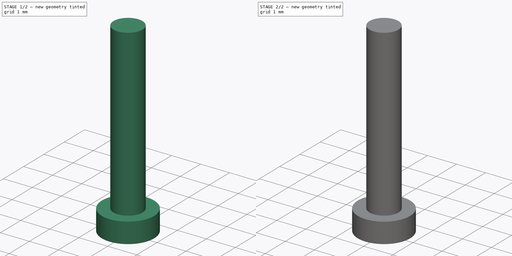
[diagram: build sequence overview — one tinted view per stage of 2, left to right]
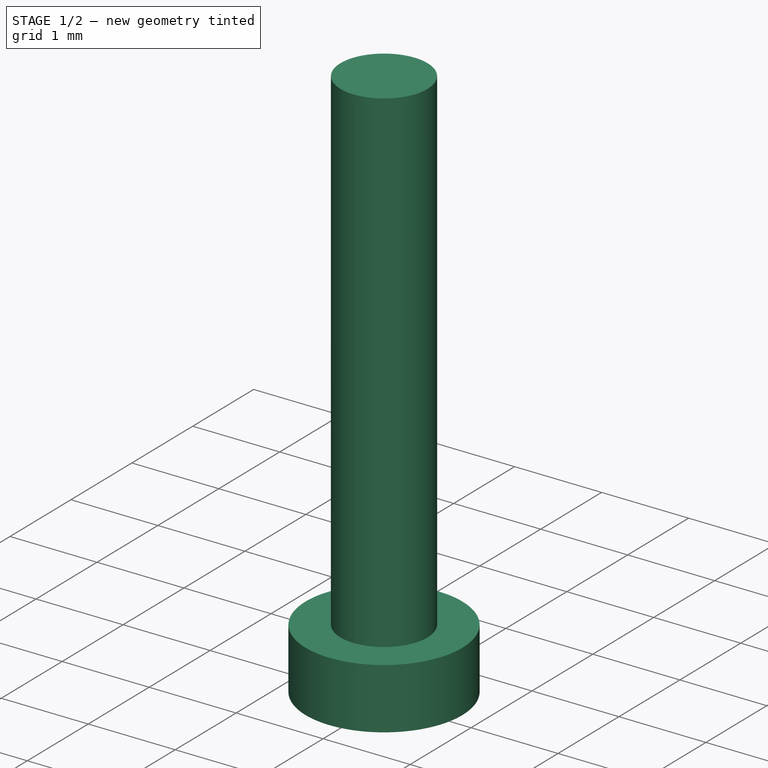
[diagram: stage 1 of 2 — iso view after this stage's code; geometry added in this stage tinted green]
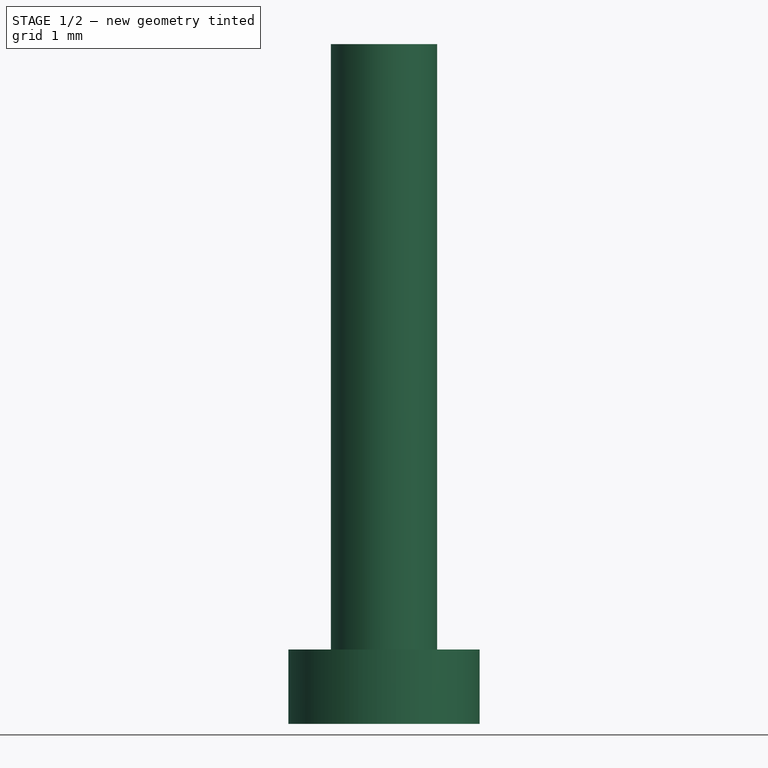
[diagram: stage 1 of 2 — front view after this stage's code; geometry added in this stage tinted green]
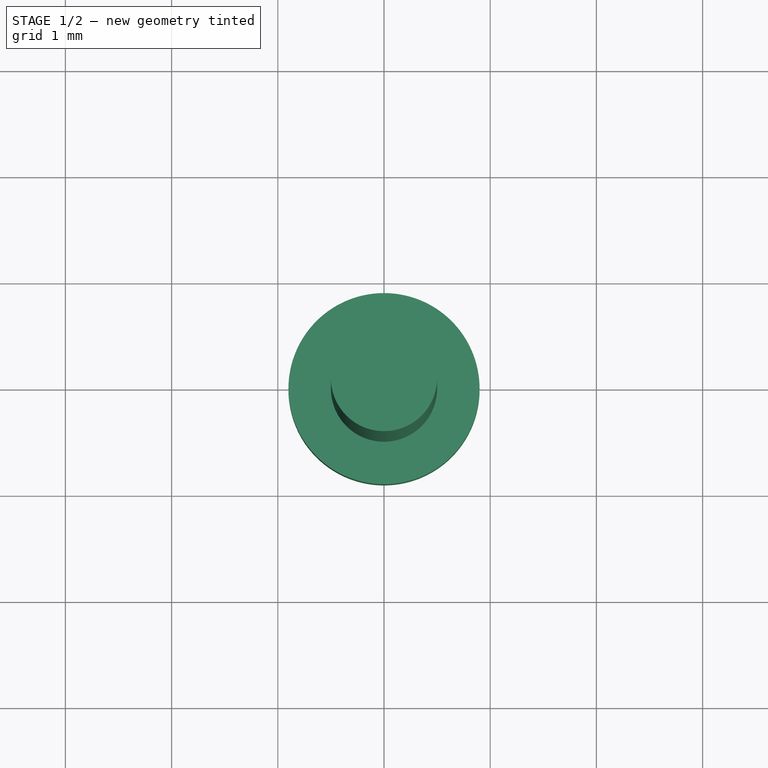
[diagram: stage 1 of 2 — top view after this stage's code; geometry added in this stage tinted green]
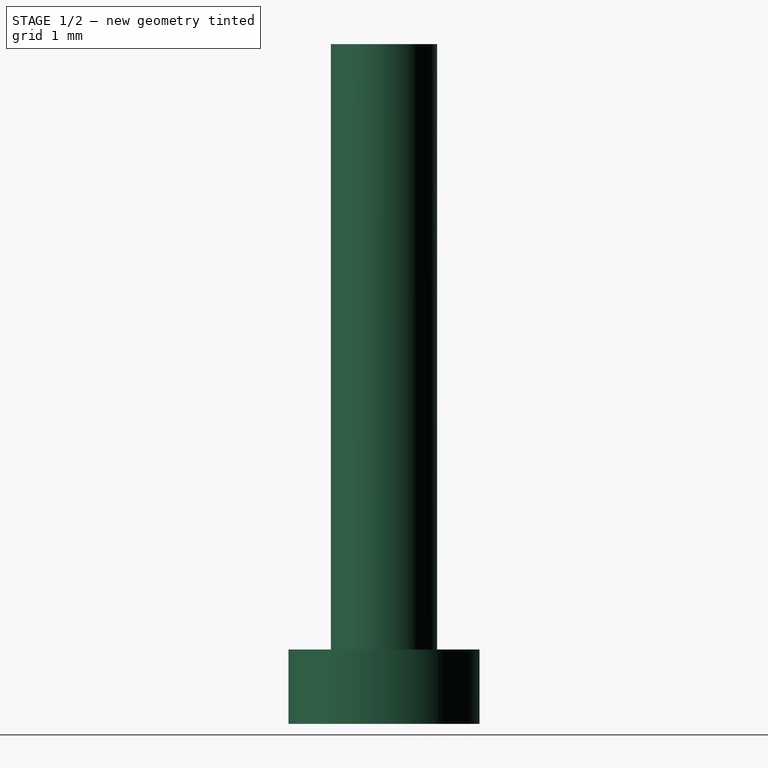
[diagram: stage 1 of 2 — right view after this stage's code; geometry added in this stage tinted green]
FCSTD DOCUMENT  (FreeCAD 0.21R33675 (Git))
Label: screw
License: All rights reserved
LicenseURL: https://en.wikipedia.org/wiki/All_rights_reserved
objects: Sketcher::SketchObject×3, PartDesign::Pad×2, PartDesign::Pocket×1, PartDesign::Body×1
note: 10 computed .brp shape members not serialized (recipe doc carries the construction recipe); baked Part::Feature solids carry a one-line shape summary decoded from their .brp

FEATURE [Sketcher::SketchObject] Sketch008
  FullyConstrained = true
  MapMode = 5
  Support = -> [XY_Plane003]
  sketch-geometry (1):
    g0: Circle CenterX=0 CenterY=0 CenterZ=0 NormalX=0 NormalY=0 NormalZ=1 AngleXU=0 Radius=0.9
  constraints (2):
    c: Coincident(g0,g-1)
    c: Diameter(g0) = 1.8
FEATURE [PartDesign::Pad] Pad007
  Direction = (0,0,1)
  Length = 0.7
  Length2 = 10
  Profile = -> Sketch008
  ReferenceAxis = -> Sketch008 [N_Axis]
  Type = 0
FEATURE [Sketcher::SketchObject] Sketch009
  FullyConstrained = true
  MapMode = 5
  Placement = pos=(0,0,0.7) rot=(0,0,1;0rad)
  Support = -> [Pad007]
  sketch-geometry (1):
    g0: Circle CenterX=0 CenterY=0 CenterZ=0 NormalX=0 NormalY=0 NormalZ=1 AngleXU=0 Radius=0.5
  constraints (2):
    c: Coincident(g0,g-1)
    c: Diameter(g0) = 1
FEATURE [PartDesign::Pad] Pad008
  BaseFeature = -> Pad007
  Direction = (0,0,1)
  Length = 5.7
  Length2 = 10
  Profile = -> Sketch009
  ReferenceAxis = -> Sketch009 [N_Axis]
  Type = 0
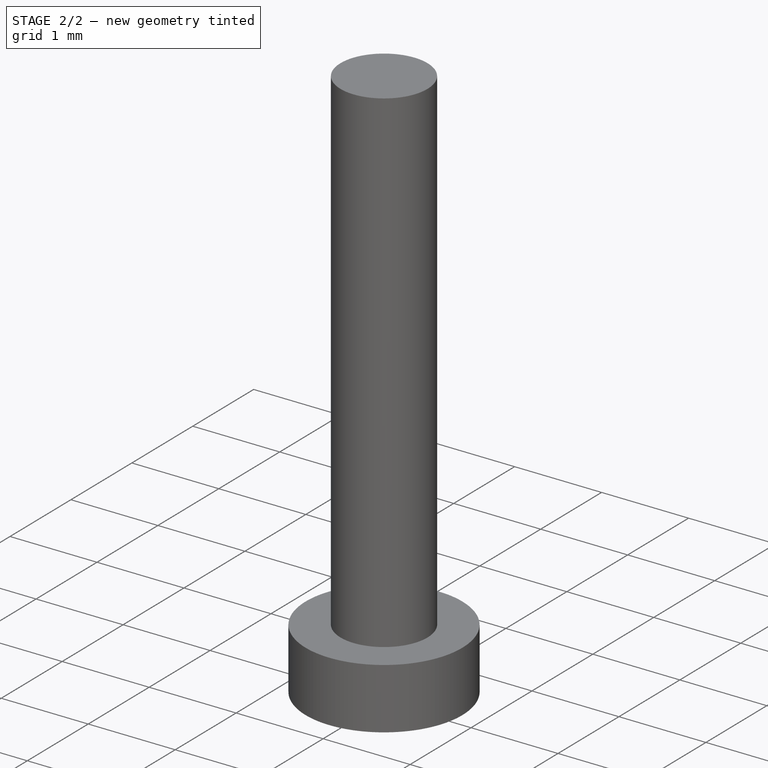
[diagram: stage 2 of 2 — iso view after this stage's code; geometry added in this stage tinted green]
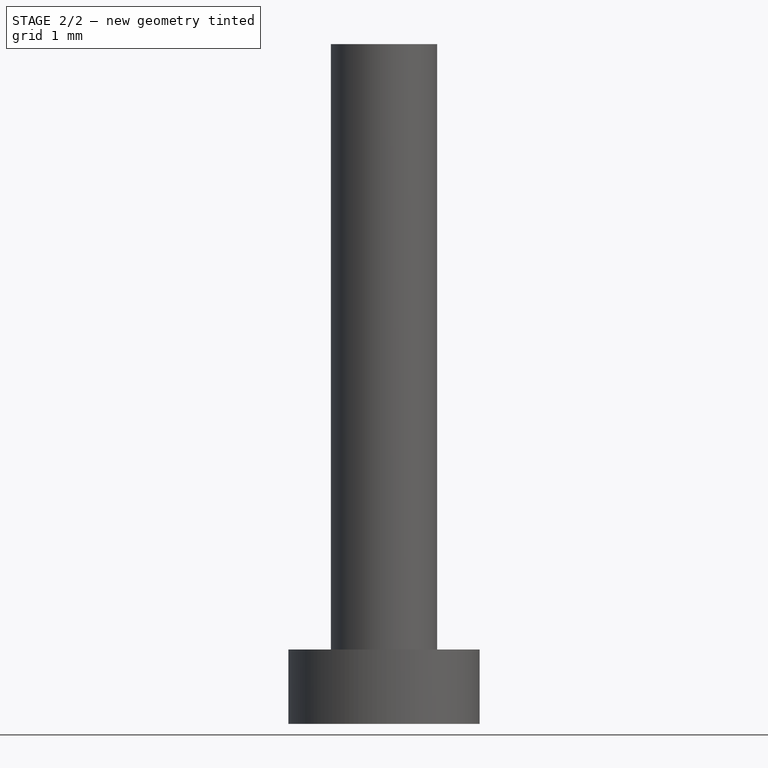
[diagram: stage 2 of 2 — front view after this stage's code; geometry added in this stage tinted green]
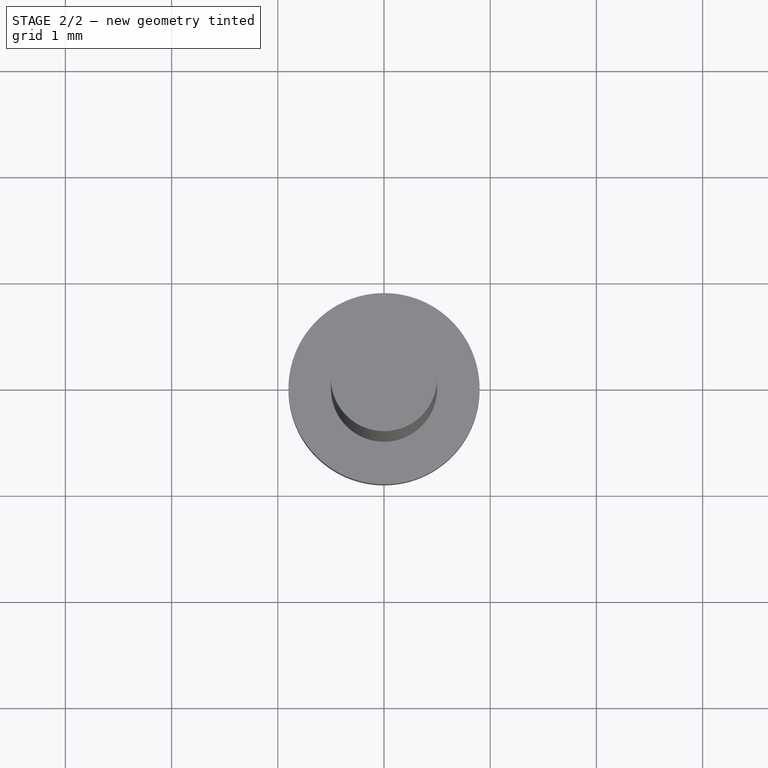
[diagram: stage 2 of 2 — top view after this stage's code; geometry added in this stage tinted green]
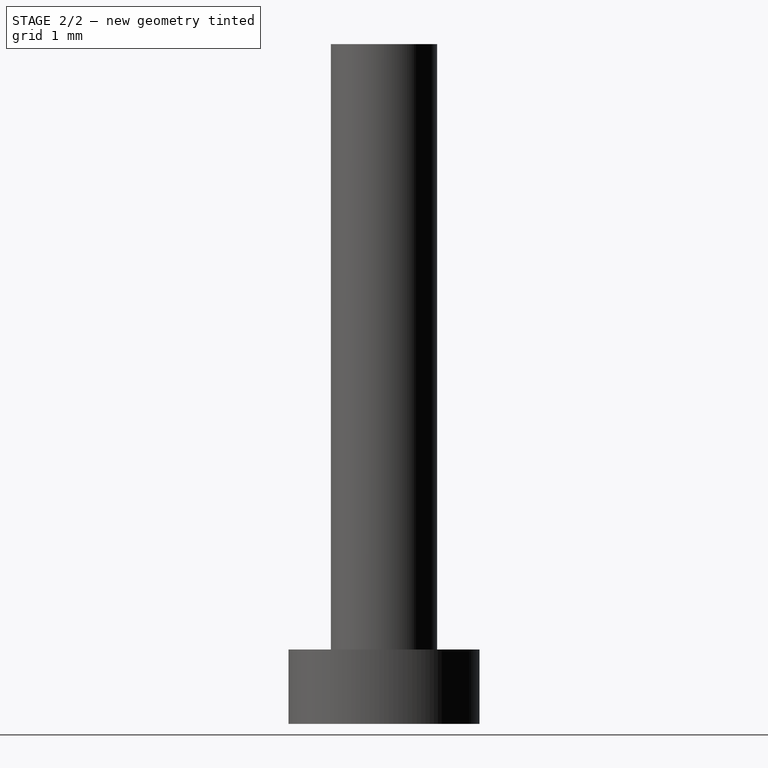
[diagram: stage 2 of 2 — right view after this stage's code; geometry added in this stage tinted green]
FEATURE [Sketcher::SketchObject] Sketch010
  FullyConstrained = true
  MapMode = 5
  Placement = pos=(0,0,0) rot=(1,0,0;3.14159rad)
  Support = -> [Pad008]
  sketch-geometry (12):
    g0: LineSegment StartX=-0.15 StartY=0.15 StartZ=0 EndX=-0.15 EndY=0.65 EndZ=0
    g1: LineSegment StartX=-0.15 StartY=0.65 StartZ=0 EndX=0.15 EndY=0.65 EndZ=0
    g2: LineSegment StartX=0.15 StartY=0.65 StartZ=0 EndX=0.15 EndY=0.15 EndZ=0
    g3: LineSegment StartX=0.15 StartY=0.15 StartZ=0 EndX=0.65 EndY=0.15 EndZ=0
    g4: LineSegment StartX=0.65 StartY=0.15 StartZ=0 EndX=0.65 EndY=-0.15 EndZ=0
    g5: LineSegment StartX=0.65 StartY=-0.15 StartZ=0 EndX=0.15 EndY=-0.15 EndZ=0
    g6: LineSegment StartX=0.15 StartY=-0.15 StartZ=0 EndX=0.15 EndY=-0.65 EndZ=0
    g7: LineSegment StartX=-0.15 StartY=-0.65 StartZ=0 EndX=-0.15 EndY=-0.15 EndZ=0
    g8: LineSegment StartX=-0.15 StartY=-0.15 StartZ=0 EndX=-0.65 EndY=-0.15 EndZ=0
    g9: LineSegment StartX=-0.65 StartY=-0.15 StartZ=0 EndX=-0.65 EndY=0.15 EndZ=0
    g10: LineSegment StartX=-0.65 StartY=0.15 StartZ=0 EndX=-0.15 EndY=0.15 EndZ=0
    g11: LineSegment StartX=-0.15 StartY=-0.65 StartZ=0 EndX=0.15 EndY=-0.65 EndZ=0
  constraints (35):
    c: Vertical(g0)
    c: Coincident(g0,g1)
    c: Horizontal(g1)
    c: Coincident(g1,g2)
    c: Vertical(g2)
    c: Coincident(g2,g3)
    c: Horizontal(g3)
    c: Coincident(g3,g4)
    c: Vertical(g4)
    c: Coincident(g4,g5)
    c: Horizontal(g5)
    c: Coincident(g5,g6)
    c: Vertical(g6)
    c: Coincident(g7,g8)
    c: Horizontal(g8)
    c: Coincident(g8,g9)
    c: Vertical(g9)
    c: Coincident(g9,g10)
    c: Coincident(g10,g0)
    c: Horizontal(g10)
    c: Coincident(g11,g7)
    c: Coincident(g11,g6)
    c: Horizontal(g11)
    c: Vertical(g7)
    c: Equal(g0,g2)
    c: Equal(g2,g3)
    c: Equal(g3,g5)
    c: Equal(g5,g6)
    c: Equal(g6,g7)
    c: Equal(g7,g8)
    c: Equal(g8,g10)
    c: Equal(g1,g9)
    c: Symmetric(g0,g6,g-1)
    c: Distance(g4) = 0.3
    c: Distance(g3) = 0.5
FEATURE [PartDesign::Pocket] Pocket001
  BaseFeature = -> Pad008
  Direction = (0,0,1)
  Length = 0.3
  Length2 = 5
  Profile = -> Sketch010
  ReferenceAxis = -> Sketch010 [N_Axis]
  Type = 0
FEATURE [PartDesign::Body] Body003  label="screw001"
  Group = -> [Sketch008,Pad007,Sketch009,Pad008,Sketch010,Pocket001]
  Origin = -> Origin003
  Placement = pos=(16.8,0,0) rot=(0,0,1;0rad)
  Tip = -> Pocket001
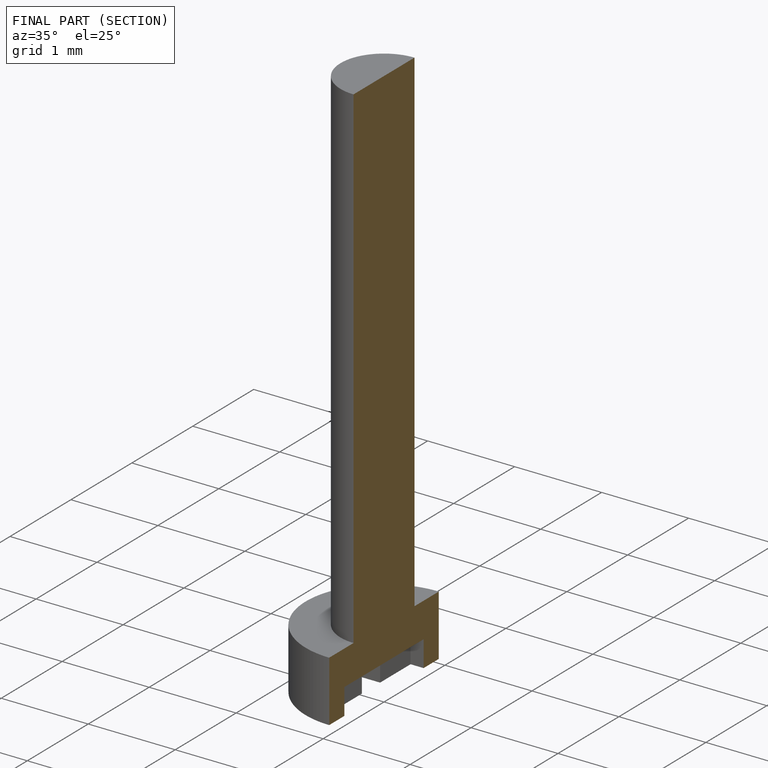
[diagram: finished part — half-section view (interior)]
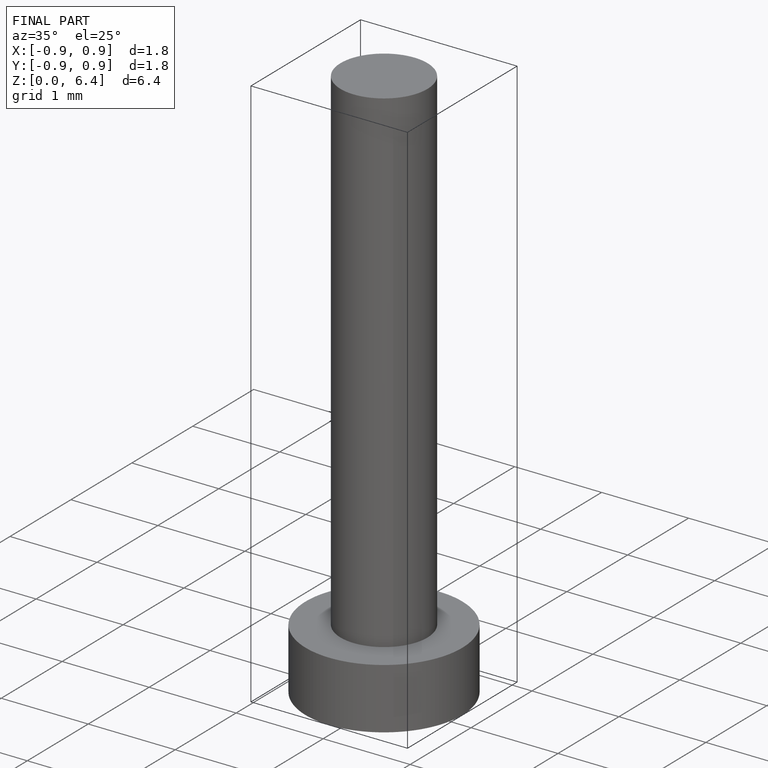
[diagram: finished part — iso view with bounding-box wireframe]
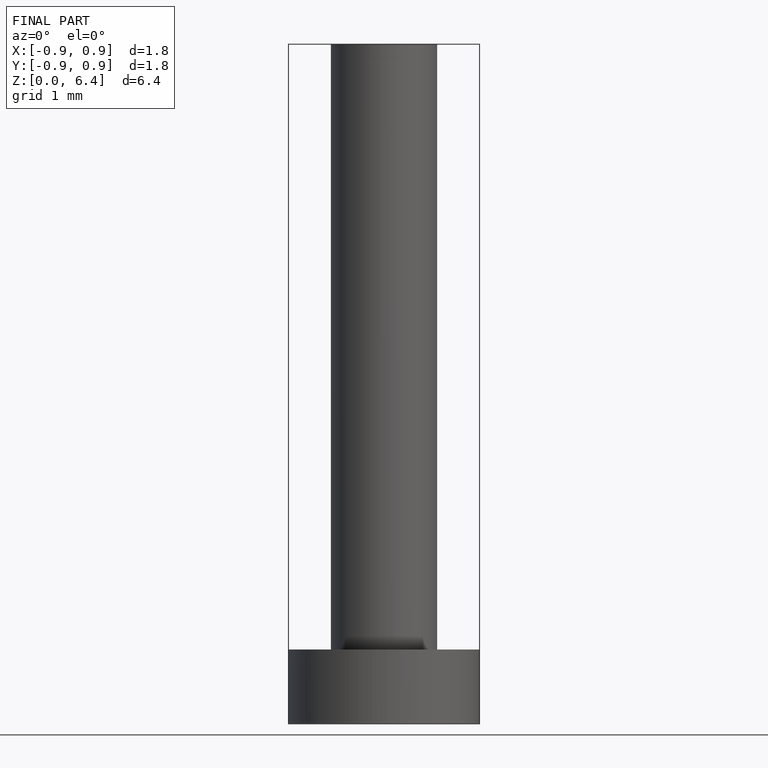
[diagram: finished part — front view with bounding-box wireframe]
